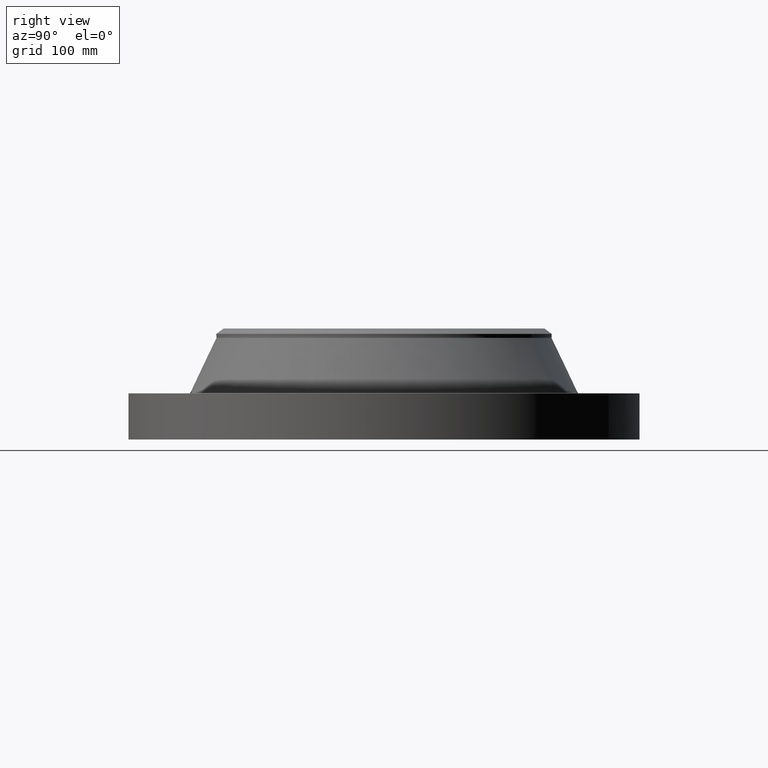
[diagram: clean part render]
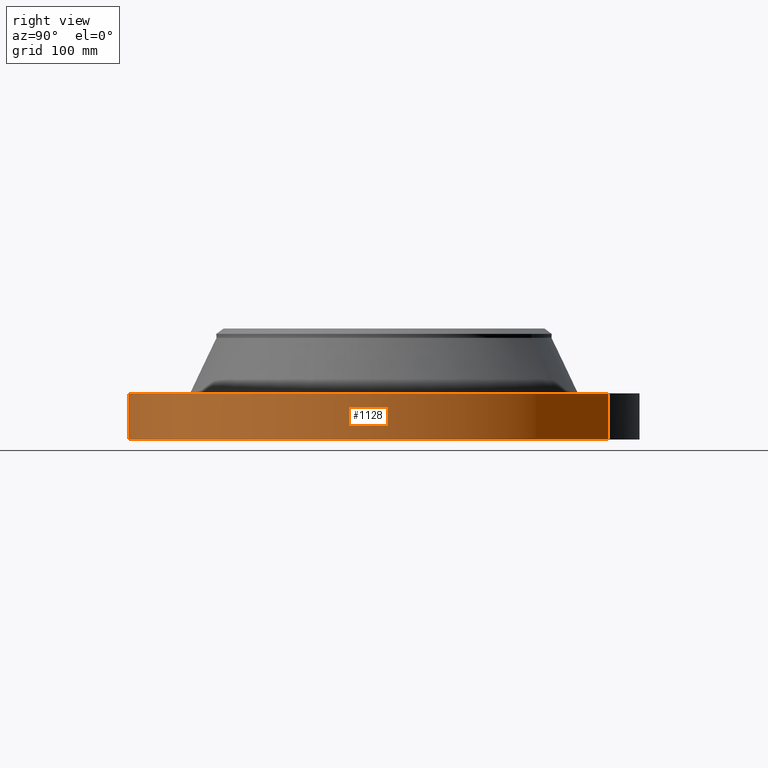
[diagram: same view with one face highlighted and labeled with its STEP entity id]
A machine part, right view. The second image highlights one B-rep face of the part: STEP entity #1128.
In plain terms, the highlighted cylindrical surface (partial cylindrical patch) has radius 387.35 mm, axis along (0, 0, -1).
Its self-contained STEP definition (entity closure, byte-faithful):
#152=AXIS2_PLACEMENT_3D('Circle Axis2P3D',#150,#151,$) ;
#610=AXIS2_PLACEMENT_3D('Circle Axis2P3D',#608,#609,$) ;
#1120=AXIS2_PLACEMENT_3D('Cylinder Axis2P3D',#1117,#1118,#1119) ;
#145=CARTESIAN_POINT('Vertex',(-7.31123946377,-13.3831340689,2.23792987641E-015)) ;
#147=CARTESIAN_POINT('Vertex',(7.31123946377,13.3831340689,-2.75466788487E-011)) ;
#150=CARTESIAN_POINT('Axis2P3D Location',(3.08521012762E-011,-6.18899507321E-012,0.)) ;
#608=CARTESIAN_POINT('Axis2P3D Location',(-1.28099106126E-011,1.16685663756E-011,2.75000000001)) ;
#612=CARTESIAN_POINT('Vertex',(7.31123946375,13.3831340689,2.75000000003)) ;
#614=CARTESIAN_POINT('Vertex',(-7.31123946377,-13.3831340689,2.75000000003)) ;
#1093=CARTESIAN_POINT('Line Origine',(-7.31123946377,-13.3831340689,1.375)) ;
#1098=CARTESIAN_POINT('Line Origine',(7.31123946377,13.3831340689,1.375)) ;
#1117=CARTESIAN_POINT('Axis2P3D Location',(0.,0.,3.31000000001)) ;
#151=DIRECTION('Axis2P3D Direction',(0.,0.,-0.0393700787402)) ;
#609=DIRECTION('Axis2P3D Direction',(0.,0.,-0.0393700787402)) ;
#1094=DIRECTION('Vector Direction',(0.,0.,-0.0393700787402)) ;
#1099=DIRECTION('Vector Direction',(0.,0.,-0.0393700787402)) ;
#1118=DIRECTION('Axis2P3D Direction',(0.,0.,-0.0393700787402)) ;
#1119=DIRECTION('Axis2P3D XDirection',(0.0188750212049,0.0345504945626,0.)) ;
#1095=VECTOR('Line Direction',#1094,0.0393700787402) ;
#1100=VECTOR('Line Direction',#1099,0.0393700787402) ;
#1123=ORIENTED_EDGE('',*,*,#154,.F.) ;
#1124=ORIENTED_EDGE('',*,*,#1102,.T.) ;
#1125=ORIENTED_EDGE('',*,*,#616,.T.) ;
#1126=ORIENTED_EDGE('',*,*,#1097,.F.) ;
#1128=ADVANCED_FACE('PartBody',(#1127),#1121,.T.) ;
#153=CIRCLE('generated circle',#152,15.2500000001) ;
#611=CIRCLE('generated circle',#610,15.2500000001) ;
#1121=CYLINDRICAL_SURFACE('generated cylinder',#1120,15.2500000001) ;
#154=EDGE_CURVE('',#148,#146,#153,.T.) ;
#616=EDGE_CURVE('',#613,#615,#611,.T.) ;
#1097=EDGE_CURVE('',#146,#615,#1096,.F.) ;
#1102=EDGE_CURVE('',#148,#613,#1101,.F.) ;
#1122=EDGE_LOOP('',(#1123,#1124,#1125,#1126)) ;
#1127=FACE_OUTER_BOUND('',#1122,.T.) ;
#1096=LINE('Line',#1093,#1095) ;
#1101=LINE('Line',#1098,#1100) ;
#146=VERTEX_POINT('',#145) ;
#148=VERTEX_POINT('',#147) ;
#613=VERTEX_POINT('',#612) ;
#615=VERTEX_POINT('',#614) ;